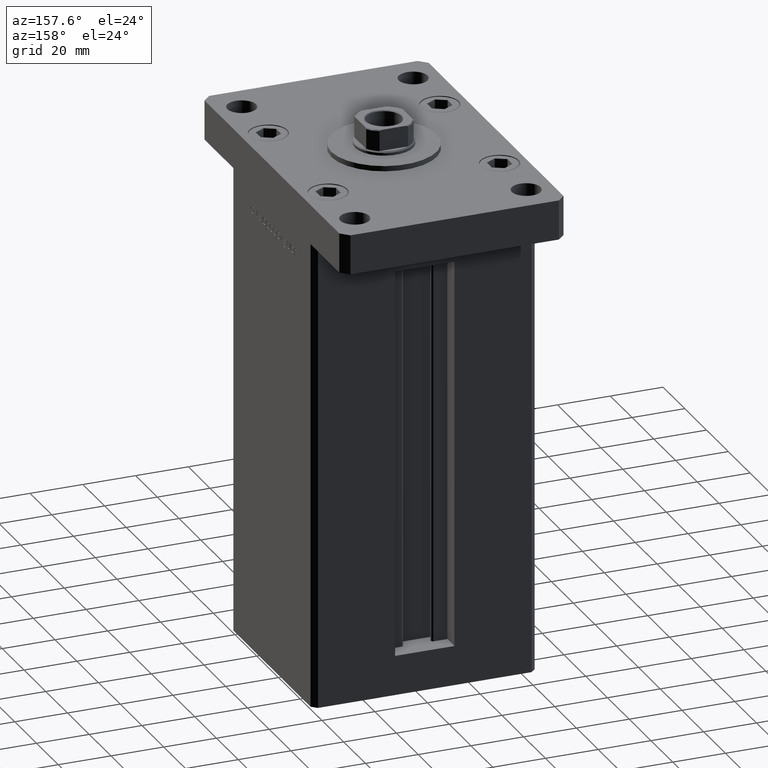
[diagram: clean part render]
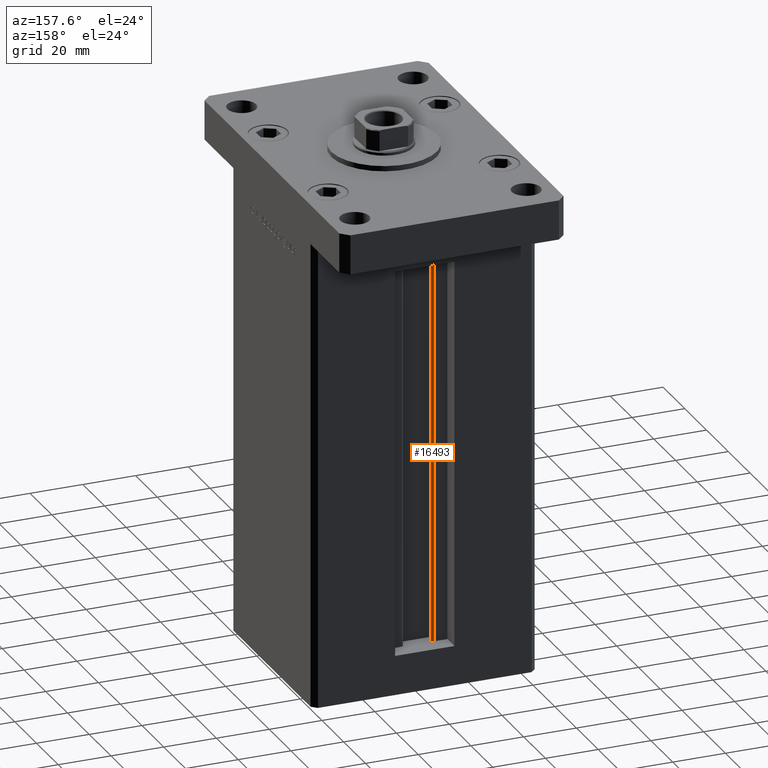
[diagram: same view with one face highlighted and labeled with its STEP entity id]
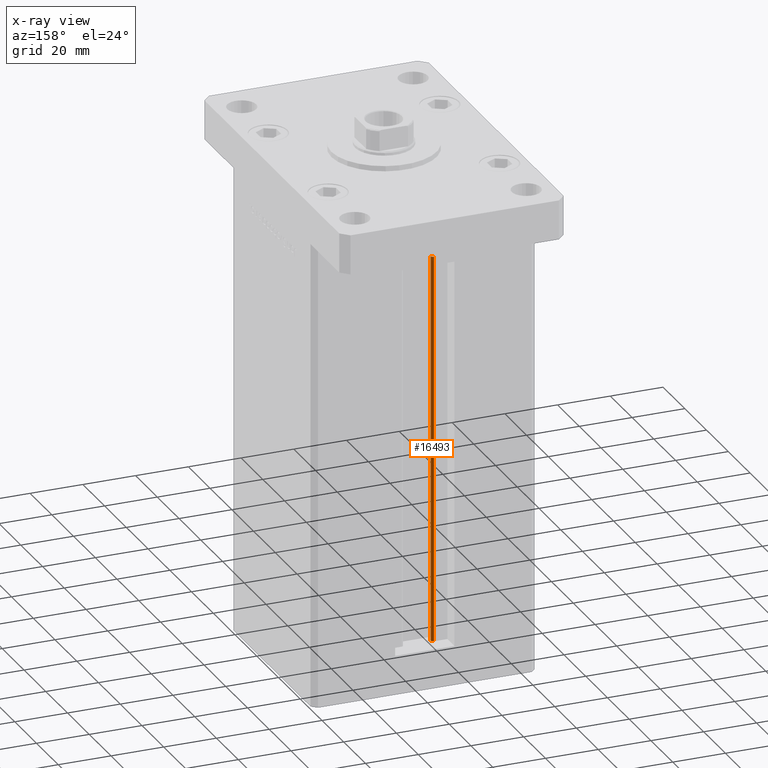
[diagram: x-ray of the same camera — body ghosted, the highlighted face saturated]
A machine part, auxiliary view. The second image highlights one B-rep face of the part: STEP entity #16493.
The next image is the same camera in x-ray: the body ghosted, the highlighted face saturated — about 1% of this face is hidden behind the body in this view.
In plain terms, the highlighted cylindrical surface (edge-blend (fillet) strip) has radius 0.9333 mm, axis along (0, 0, 1).
Its self-contained STEP definition (entity closure, byte-faithful):
#2226 = LINE ( 'NONE', #43205, #39213 ) ;
#4454 = EDGE_CURVE ( 'NONE', #22951, #31006, #48245, .T. ) ;
#6997 = CARTESIAN_POINT ( 'NONE',  ( -6.183333333333999704, 30.99999999999999289, 0.000000000000000000 ) ) ;
#7810 = CARTESIAN_POINT ( 'NONE',  ( -5.249999999999997335, 30.06666666666599141, 0.000000000000000000 ) ) ;
#8185 = EDGE_LOOP ( 'NONE', ( #46571, #20080, #31211, #40700 ) ) ;
#9286 = DIRECTION ( 'NONE',  ( -0.000000000000000000, -0.000000000000000000, 1.000000000000000000 ) ) ;
#11293 = CARTESIAN_POINT ( 'NONE',  ( -5.249999999999997335, 30.06666666666599141, 0.000000000000000000 ) ) ;
#12106 = DIRECTION ( 'NONE',  ( -0.000000000000000000, -0.000000000000000000, 1.000000000000000000 ) ) ;
#14705 = DIRECTION ( 'NONE',  ( -0.000000000000000000, -0.000000000000000000, 1.000000000000000000 ) ) ;
#16493 = ADVANCED_FACE ( 'NONE', ( #43377 ), #51783, .T. ) ;
#18702 = CARTESIAN_POINT ( 'NONE',  ( -6.183333333333999704, 30.99999999999999289, 147.5000000000000000 ) ) ;
#20080 = ORIENTED_EDGE ( 'NONE', *, *, #4454, .F. ) ;
#20911 = CIRCLE ( 'NONE', #40805, 0.9333333333340015914 ) ;
#21142 = VECTOR ( 'NONE', #12106, 1000.000000000000000 ) ;
#22951 = VERTEX_POINT ( 'NONE', #6997 ) ;
#26090 = AXIS2_PLACEMENT_3D ( 'NONE', #50796, #9286, #30158 ) ;
#27132 = VERTEX_POINT ( 'NONE', #18702 ) ;
#27310 = DIRECTION ( 'NONE',  ( 1.000000000000000000, 0.000000000000000000, 0.000000000000000000 ) ) ;
#27572 = DIRECTION ( 'NONE',  ( -0.000000000000000000, -0.000000000000000000, -1.000000000000000000 ) ) ;
#27691 = CARTESIAN_POINT ( 'NONE',  ( -6.183333333333999704, 30.06666666666599141, 147.5000000000000000 ) ) ;
#30158 = DIRECTION ( 'NONE',  ( 1.000000000000000000, 0.000000000000000000, 0.000000000000000000 ) ) ;
#31006 = VERTEX_POINT ( 'NONE', #7810 ) ;
#31211 = ORIENTED_EDGE ( 'NONE', *, *, #48048, .T. ) ;
#31367 = CARTESIAN_POINT ( 'NONE',  ( -6.183333333333999704, 30.06666666666599141, 0.000000000000000000 ) ) ;
#31760 = AXIS2_PLACEMENT_3D ( 'NONE', #31367, #27572, #27310 ) ;
#32639 = CARTESIAN_POINT ( 'NONE',  ( -5.249999999999997335, 30.06666666666599141, 147.5000000000000000 ) ) ;
#38524 = EDGE_CURVE ( 'NONE', #27132, #48868, #20911, .T. ) ;
#39213 = VECTOR ( 'NONE', #14705, 1000.000000000000000 ) ;
#40185 = DIRECTION ( 'NONE',  ( 1.000000000000000000, 0.000000000000000000, 0.000000000000000000 ) ) ;
#40700 = ORIENTED_EDGE ( 'NONE', *, *, #38524, .T. ) ;
#40805 = AXIS2_PLACEMENT_3D ( 'NONE', #27691, #44250, #40185 ) ;
#43205 = CARTESIAN_POINT ( 'NONE',  ( -6.183333333333999704, 30.99999999999999289, 0.000000000000000000 ) ) ;
#43377 = FACE_OUTER_BOUND ( 'NONE', #8185, .T. ) ;
#44250 = DIRECTION ( 'NONE',  ( 0.000000000000000000, 0.000000000000000000, -1.000000000000000000 ) ) ;
#46571 = ORIENTED_EDGE ( 'NONE', *, *, #51606, .F. ) ;
#48048 = EDGE_CURVE ( 'NONE', #22951, #27132, #2226, .T. ) ;
#48209 = LINE ( 'NONE', #11293, #21142 ) ;
#48245 = CIRCLE ( 'NONE', #31760, 0.9333333333340015914 ) ;
#48868 = VERTEX_POINT ( 'NONE', #32639 ) ;
#50796 = CARTESIAN_POINT ( 'NONE',  ( -6.183333333333999704, 30.06666666666599141, 0.000000000000000000 ) ) ;
#51606 = EDGE_CURVE ( 'NONE', #31006, #48868, #48209, .T. ) ;
#51783 = CYLINDRICAL_SURFACE ( 'NONE', #26090, 0.9333333333340015914 ) ;